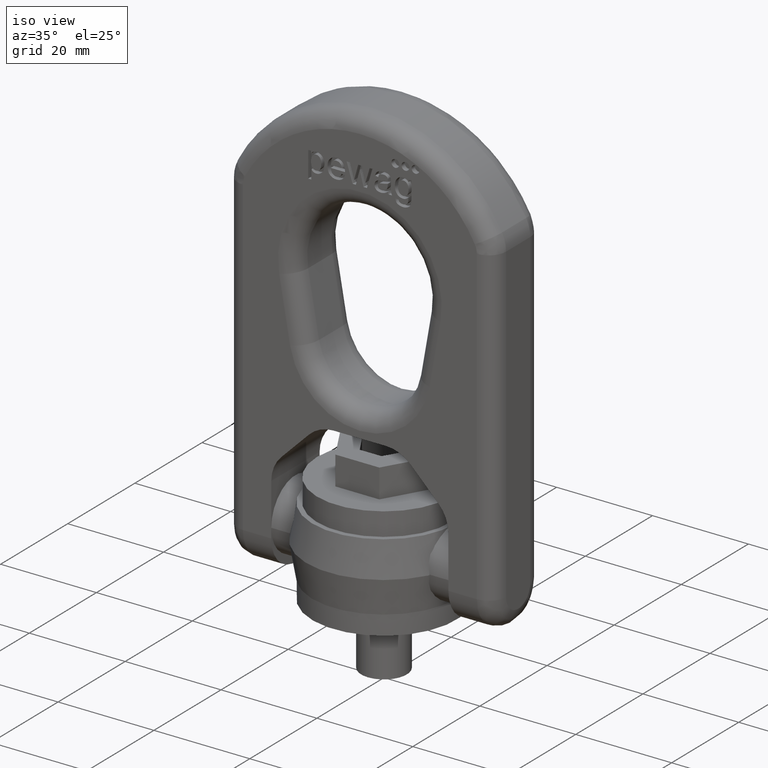
[diagram: clean part render]
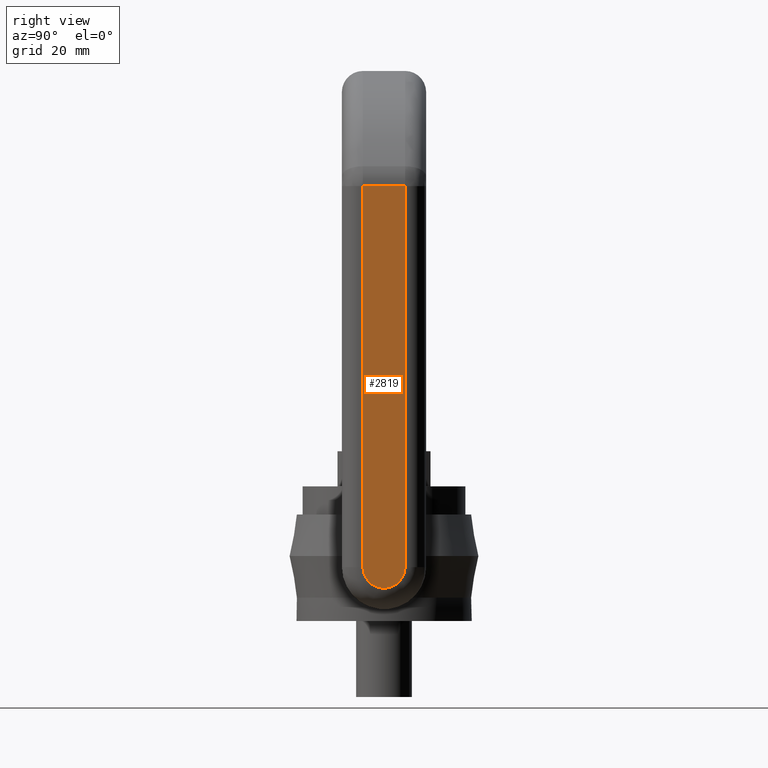
[diagram: tour spotlight — one face highlighted and labeled with its STEP entity id]
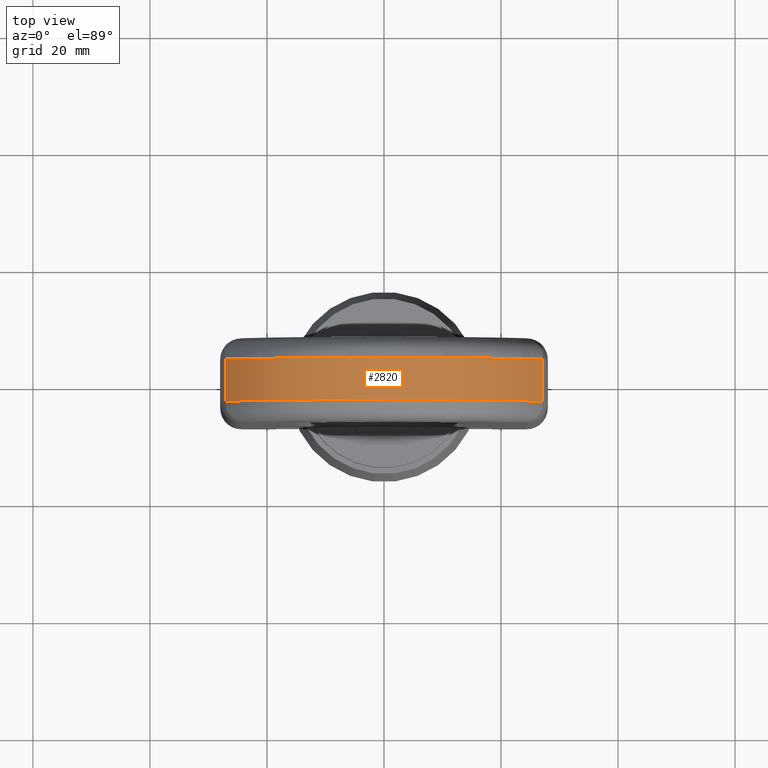
[diagram: tour spotlight — one face highlighted and labeled with its STEP entity id]
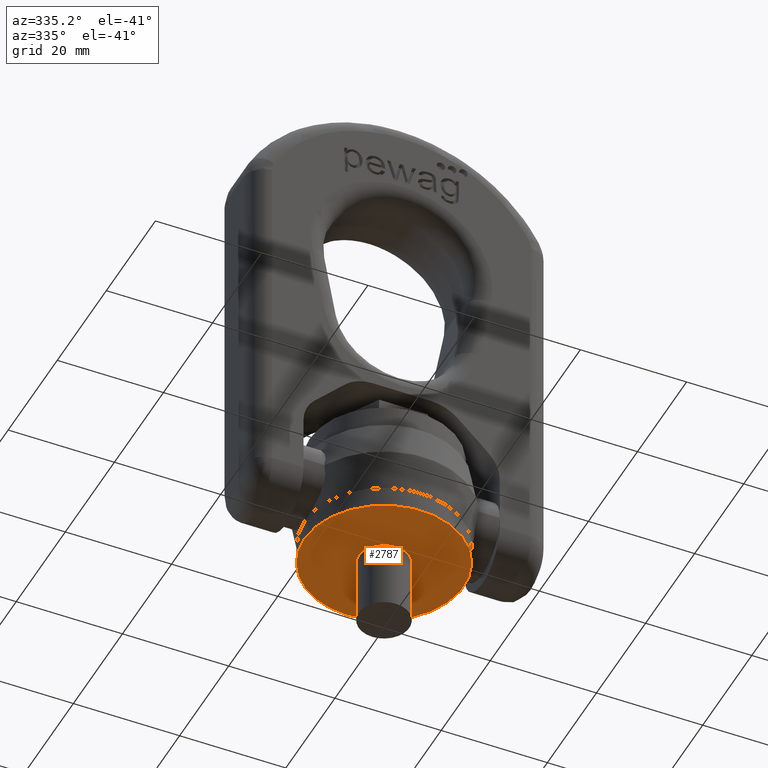
[diagram: tour spotlight — one face highlighted and labeled with its STEP entity id]
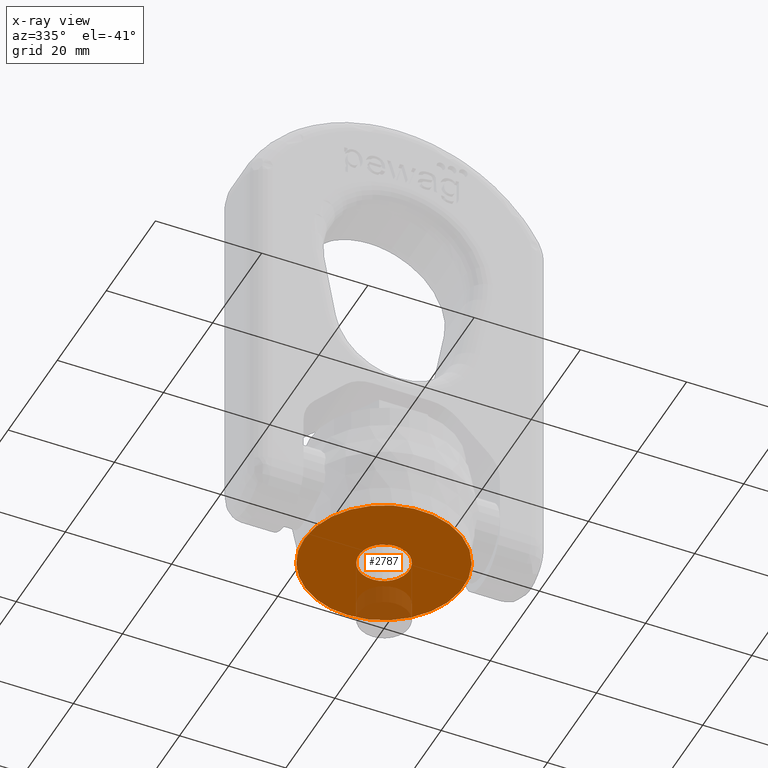
[diagram: x-ray of the same camera — body ghosted, this tour face saturated]
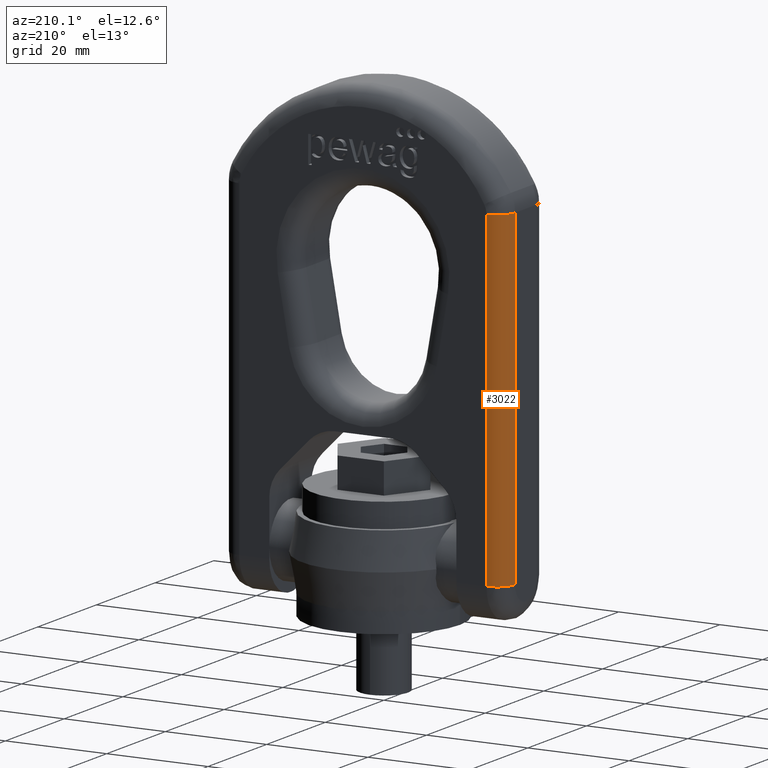
[diagram: tour spotlight — one face highlighted and labeled with its STEP entity id]
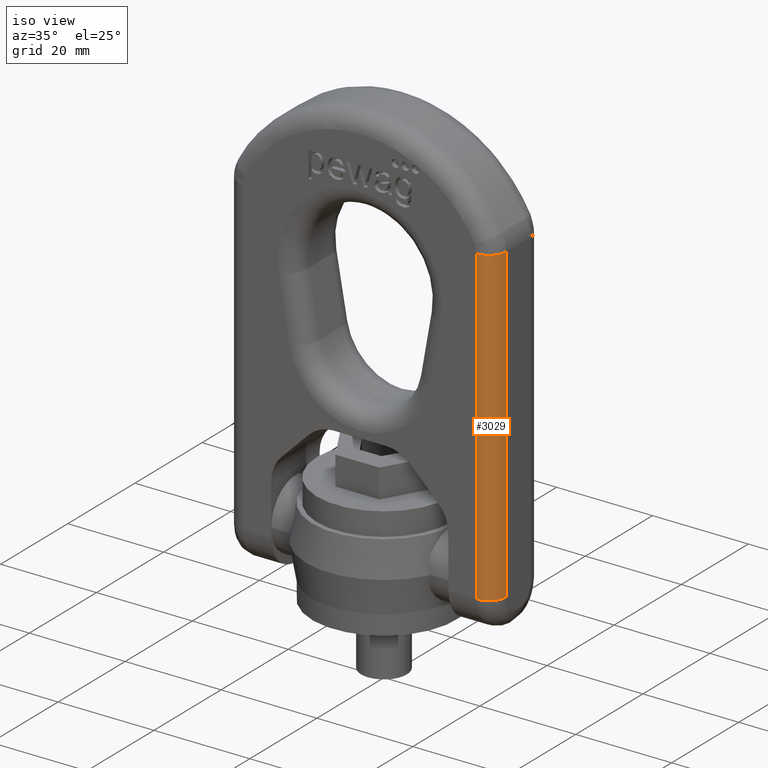
[diagram: tour spotlight — one face highlighted and labeled with its STEP entity id]
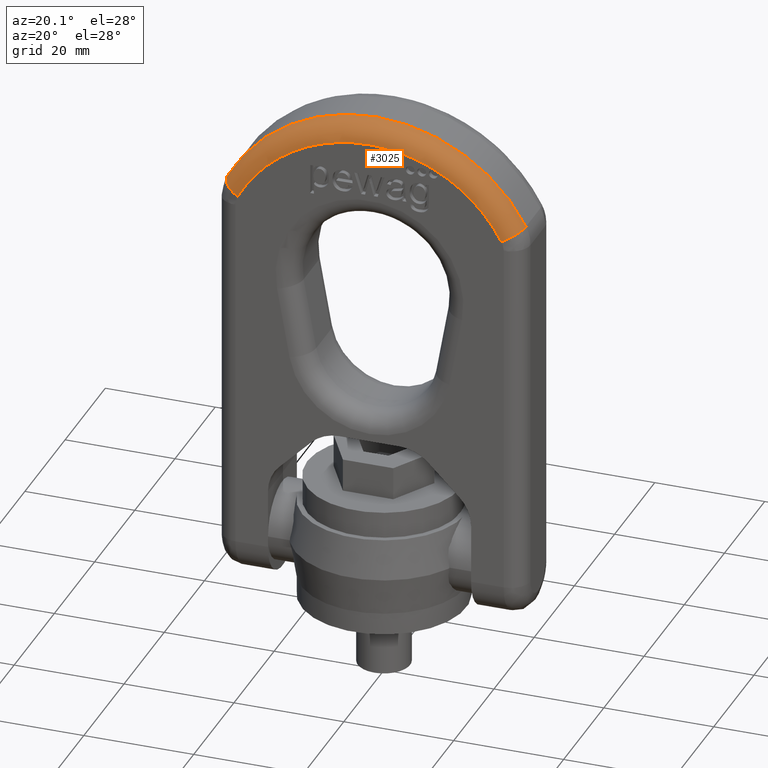
[diagram: tour spotlight — one face highlighted and labeled with its STEP entity id]
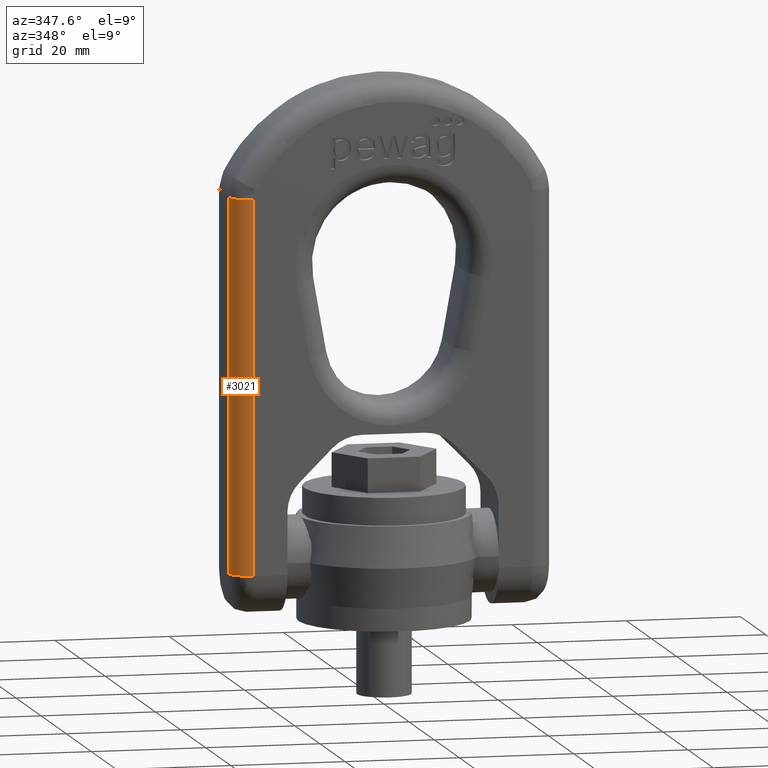
[diagram: tour spotlight — one face highlighted and labeled with its STEP entity id]
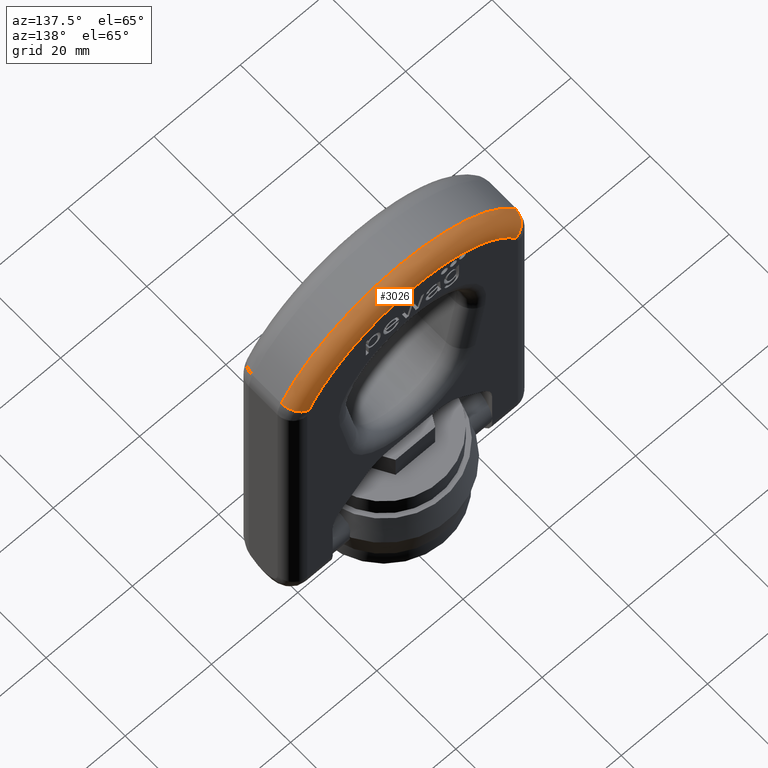
[diagram: tour spotlight — one face highlighted and labeled with its STEP entity id]
A machine part: a face-by-face anatomy tour. The part has 254 B-rep faces; the first image is the clean iso view, then the 8 largest visible faces are spotlighted one at a time (largest first), each with its STEP entity span.

Face 1 — right view, entity #2819. In plain terms, the highlighted planar face has unit normal (-1, 0, -0).
Definition (entity closure, byte-faithful):
#1867=LINE('',#7754,#2175);
#1868=LINE('',#7756,#2176);
#1869=LINE('',#7758,#2177);
#2175=VECTOR('',#6354,1.);
#2176=VECTOR('',#6355,1.);
#2177=VECTOR('',#6356,1.);
#2459=FACE_OUTER_BOUND('',#3197,.T.);
#2690=PLANE('',#5903);
#2819=ADVANCED_FACE('',(#2459),#2690,.F.);
#3197=EDGE_LOOP('',(#3735,#3736,#3737,#3738));
#3735=ORIENTED_EDGE('',*,*,#5364,.T.);
#3736=ORIENTED_EDGE('',*,*,#5365,.T.);
#3737=ORIENTED_EDGE('',*,*,#5366,.T.);
#3738=ORIENTED_EDGE('',*,*,#5367,.T.);
#4923=VERTEX_POINT('',#7752);
#4924=VERTEX_POINT('',#7753);
#4925=VERTEX_POINT('',#7755);
#4926=VERTEX_POINT('',#7757);
#5364=EDGE_CURVE('',#4923,#4924,#5790,.T.);
#5365=EDGE_CURVE('',#4924,#4925,#1867,.T.);
#5366=EDGE_CURVE('',#4925,#4926,#1868,.T.);
#5367=EDGE_CURVE('',#4926,#4923,#1869,.T.);
#5790=CIRCLE('',#5902,3.59999999999997);
#5902=AXIS2_PLACEMENT_3D('',#7751,#6352,#6353);
#5903=AXIS2_PLACEMENT_3D('',#7759,#6357,#6358);
#6352=DIRECTION('',(1.,0.,1.4065325480893E-16));
#6353=DIRECTION('',(0.,0.,1.));
#6354=DIRECTION('',(-1.4065325480893E-16,3.29538019783828E-31,1.));
#6355=DIRECTION('',(0.,-1.,0.));
#6356=DIRECTION('',(1.4065325480893E-16,0.,-1.));
#6357=DIRECTION('',(-1.,0.,-1.4065325480893E-16));
#6358=DIRECTION('',(-1.42247325030098E-16,0.,1.));
#7751=CARTESIAN_POINT('',(28.,-2.87220644093874E-14,9.19999999999997));
#7752=CARTESIAN_POINT('',(28.,-3.6,9.19999999999997));
#7753=CARTESIAN_POINT('',(28.,3.59999999999994,9.19999999999997));
#7754=CARTESIAN_POINT('',(28.,3.59999999999994,74.324996872654));
#7755=CARTESIAN_POINT('',(28.,3.59999999999994,74.324996872654));
#7756=CARTESIAN_POINT('',(28.,-7.2,74.324996872654));
#7757=CARTESIAN_POINT('',(28.,-3.6,74.324996872654));
#7758=CARTESIAN_POINT('',(28.,-3.6,9.19999999999997));
#7759=CARTESIAN_POINT('',(28.,-7.2,2.));

Face 2 — top view, entity #2820. In plain terms, the highlighted cylindrical surface (partial cylindrical patch) has radius 30.7778 mm, axis along (0, 1, 0).
Definition (entity closure, byte-faithful):
#1870=LINE('',#7760,#2178);
#1871=LINE('',#7765,#2179);
#2178=VECTOR('',#6359,1.);
#2179=VECTOR('',#6362,1.);
#2460=FACE_OUTER_BOUND('',#3198,.T.);
#2820=ADVANCED_FACE('',(#2460),#3046,.T.);
#3046=CYLINDRICAL_SURFACE('',#5906,30.7777777777778);
#3198=EDGE_LOOP('',(#3739,#3740,#3741,#3742));
#3739=ORIENTED_EDGE('',*,*,#5368,.T.);
#3740=ORIENTED_EDGE('',*,*,#5369,.T.);
#3741=ORIENTED_EDGE('',*,*,#5370,.T.);
#3742=ORIENTED_EDGE('',*,*,#5371,.T.);
#4927=VERTEX_POINT('',#7761);
#4928=VERTEX_POINT('',#7762);
#4929=VERTEX_POINT('',#7764);
#4930=VERTEX_POINT('',#7766);
#5368=EDGE_CURVE('',#4927,#4928,#1870,.T.);
#5369=EDGE_CURVE('',#4928,#4929,#5791,.T.);
#5370=EDGE_CURVE('',#4929,#4930,#1871,.T.);
#5371=EDGE_CURVE('',#4930,#4927,#5792,.T.);
#5791=CIRCLE('',#5904,30.7777777777778);
#5792=CIRCLE('',#5905,30.7777777777778);
#5904=AXIS2_PLACEMENT_3D('',#7763,#6360,#6361);
#5905=AXIS2_PLACEMENT_3D('',#7767,#6363,#6364);
#5906=AXIS2_PLACEMENT_3D('',#7768,#6365,#6366);
#6359=DIRECTION('',(0.,1.,0.));
#6360=DIRECTION('',(-2.34291072916505E-15,-1.,0.));
#6361=DIRECTION('',(-1.,2.33905854973768E-15,0.));
#6362=DIRECTION('',(0.,-1.,0.));
#6363=DIRECTION('',(0.,1.,0.));
#6364=DIRECTION('',(0.,0.,-1.));
#6365=DIRECTION('',(0.,1.,0.));
#6366=DIRECTION('',(0.,0.,1.));
#7760=CARTESIAN_POINT('',(27.1517436380773,-7.2,77.7154765962543));
#7761=CARTESIAN_POINT('',(27.1517436380773,-3.6,77.7154765962543));
#7762=CARTESIAN_POINT('',(27.1517436380773,3.59999999999993,77.7154765962543));
#7763=CARTESIAN_POINT('',(0.,3.59999999999999,63.2222222222222));
#7764=CARTESIAN_POINT('',(-27.1517436380773,3.60000000000006,77.7154765962543));
#7765=CARTESIAN_POINT('',(-27.1517436380773,-7.2,77.7154765962543));
#7766=CARTESIAN_POINT('',(-27.1517436380773,-3.6,77.7154765962543));
#7767=CARTESIAN_POINT('',(0.,-3.6,63.2222222222222));
#7768=CARTESIAN_POINT('',(0.,-7.2,63.2222222222222));

Face 3 — auxiliary view, entity #2787. An x-ray twin of the same camera follows (body ghosted, this face saturated) — the face is partly hidden behind the body. In plain terms, the highlighted planar face has unit normal (0, 0, -1).
Definition (entity closure, byte-faithful):
#2665=PLANE('',#5832);
#2787=ADVANCED_FACE('',(#3071,#3072),#2665,.T.);
#3071=FACE_BOUND('',#3139,.T.);
#3072=FACE_BOUND('',#3140,.T.);
#3139=EDGE_LOOP('',(#3435));
#3140=EDGE_LOOP('',(#3436));
#3435=ORIENTED_EDGE('',*,*,#5119,.F.);
#3436=ORIENTED_EDGE('',*,*,#5118,.T.);
#4698=VERTEX_POINT('',#6940);
#4699=VERTEX_POINT('',#6943);
#5118=EDGE_CURVE('',#4698,#4698,#5750,.T.);
#5119=EDGE_CURVE('',#4699,#4699,#5751,.T.);
#5750=CIRCLE('',#5829,15.);
#5751=CIRCLE('',#5831,4.765);
#5829=AXIS2_PLACEMENT_3D('',#6939,#6068,#6069);
#5831=AXIS2_PLACEMENT_3D('',#6942,#6072,#6073);
#5832=AXIS2_PLACEMENT_3D('',#6944,#6074,#6075);
#6068=DIRECTION('',(0.,0.,-1.));
#6069=DIRECTION('',(-6.12323399573677E-17,1.,0.));
#6072=DIRECTION('',(0.,0.,-1.));
#6073=DIRECTION('',(-6.12323399573677E-17,1.,0.));
#6074=DIRECTION('',(0.,0.,-1.));
#6075=DIRECTION('',(-1.,0.,0.));
#6939=CARTESIAN_POINT('',(0.,0.,0.));
#6940=CARTESIAN_POINT('',(-9.18485099360515E-16,15.,0.));
#6942=CARTESIAN_POINT('',(0.,0.,0.));
#6943=CARTESIAN_POINT('',(-2.91772099896857E-16,4.765,0.));
#6944=CARTESIAN_POINT('',(0.,0.,0.));

Face 4 — auxiliary view, entity #3022. In plain terms, the highlighted cylindrical surface (edge-blend (fillet) strip) has radius 3.6 mm, axis along (-0, 0, -1).
Definition (entity closure, byte-faithful):
#1823=LINE('',#7423,#2131);
#1865=LINE('',#7745,#2173);
#2131=VECTOR('',#6282,1.);
#2173=VECTOR('',#6346,1.);
#2647=FACE_OUTER_BOUND('',#3415,.T.);
#3022=ADVANCED_FACE('',(#2647),#3062,.T.);
#3062=CYLINDRICAL_SURFACE('',#6035,3.6);
#3415=EDGE_LOOP('',(#4625,#4626,#4627,#4628));
#4625=ORIENTED_EDGE('',*,*,#5729,.T.);
#4626=ORIENTED_EDGE('',*,*,#5361,.F.);
#4627=ORIENTED_EDGE('',*,*,#5732,.F.);
#4628=ORIENTED_EDGE('',*,*,#5278,.F.);
#4739=VERTEX_POINT('',#7058);
#4840=VERTEX_POINT('',#7424);
#4920=VERTEX_POINT('',#7744);
#4921=VERTEX_POINT('',#7746);
#5278=EDGE_CURVE('',#4739,#4840,#1823,.T.);
#5361=EDGE_CURVE('',#4920,#4921,#1865,.T.);
#5729=EDGE_CURVE('',#4739,#4921,#5807,.T.);
#5732=EDGE_CURVE('',#4840,#4920,#5810,.T.);
#5807=CIRCLE('',#6030,3.6);
#5810=CIRCLE('',#6034,3.6);
#6030=AXIS2_PLACEMENT_3D('',#9715,#6868,#6869);
#6034=AXIS2_PLACEMENT_3D('',#9735,#6876,#6877);
#6035=AXIS2_PLACEMENT_3D('',#9736,#6878,#6879);
#6282=DIRECTION('',(1.4065325480893E-16,-3.29538019783828E-31,1.));
#6346=DIRECTION('',(-1.4065325480893E-16,3.29538019783828E-31,-1.));
#6868=DIRECTION('',(0.,0.,1.));
#6869=DIRECTION('',(1.,0.,0.));
#6876=DIRECTION('',(0.,0.,1.));
#6877=DIRECTION('',(1.,0.,0.));
#6878=DIRECTION('',(-1.4065325480893E-16,3.29538019783828E-31,-1.));
#6879=DIRECTION('',(-1.,0.,0.));
#7058=CARTESIAN_POINT('',(-24.4,7.20000000000006,9.20000000000003));
#7423=CARTESIAN_POINT('',(-24.4,7.20000000000006,74.324996872654));
#7424=CARTESIAN_POINT('',(-24.4,7.20000000000006,74.324996872654));
#7744=CARTESIAN_POINT('',(-28.,3.60000000000006,74.324996872654));
#7745=CARTESIAN_POINT('',(-28.,3.60000000000006,9.20000000000003));
#7746=CARTESIAN_POINT('',(-28.,3.6,9.20000000000003));
#9715=CARTESIAN_POINT('',(-24.4,3.6,9.20000000000003));
#9735=CARTESIAN_POINT('',(-24.4,3.60000000000006,74.324996872654));
#9736=CARTESIAN_POINT('',(-24.4,3.60000000000006,63.2222222222222));

Face 5 — iso view, entity #3029. In plain terms, the highlighted cylindrical surface (edge-blend (fillet) strip) has radius 3.6 mm, axis along (0, 0, -1).
Definition (entity closure, byte-faithful):
#1776=LINE('',#7077,#2084);
#1869=LINE('',#7758,#2177);
#2084=VECTOR('',#6199,1.);
#2177=VECTOR('',#6356,1.);
#2654=FACE_OUTER_BOUND('',#3422,.T.);
#3029=ADVANCED_FACE('',(#2654),#3063,.T.);
#3063=CYLINDRICAL_SURFACE('',#6045,3.6);
#3422=EDGE_LOOP('',(#4653,#4654,#4655,#4656));
#4653=ORIENTED_EDGE('',*,*,#5737,.F.);
#4654=ORIENTED_EDGE('',*,*,#5180,.F.);
#4655=ORIENTED_EDGE('',*,*,#5739,.F.);
#4656=ORIENTED_EDGE('',*,*,#5367,.F.);
#4742=VERTEX_POINT('',#7066);
#4747=VERTEX_POINT('',#7078);
#4923=VERTEX_POINT('',#7752);
#4926=VERTEX_POINT('',#7757);
#5180=EDGE_CURVE('',#4742,#4747,#1776,.T.);
#5367=EDGE_CURVE('',#4926,#4923,#1869,.T.);
#5737=EDGE_CURVE('',#4747,#4926,#5815,.T.);
#5739=EDGE_CURVE('',#4923,#4742,#5817,.T.);
#5815=CIRCLE('',#6042,3.6);
#5817=CIRCLE('',#6044,3.6);
#6042=AXIS2_PLACEMENT_3D('',#9775,#6892,#6893);
#6044=AXIS2_PLACEMENT_3D('',#9809,#6896,#6897);
#6045=AXIS2_PLACEMENT_3D('',#9810,#6898,#6899);
#6199=DIRECTION('',(-1.4065325480893E-16,0.,1.));
#6356=DIRECTION('',(1.4065325480893E-16,0.,-1.));
#6892=DIRECTION('',(0.,0.,1.));
#6893=DIRECTION('',(-1.,0.,0.));
#6896=DIRECTION('',(0.,0.,-1.));
#6897=DIRECTION('',(-1.,0.,0.));
#6898=DIRECTION('',(1.4065325480893E-16,0.,-1.));
#6899=DIRECTION('',(-1.,0.,0.));
#7066=CARTESIAN_POINT('',(24.4,-7.2,9.19999999999997));
#7077=CARTESIAN_POINT('',(24.4,-7.2,74.324996872654));
#7078=CARTESIAN_POINT('',(24.4,-7.2,74.324996872654));
#7752=CARTESIAN_POINT('',(28.,-3.6,9.19999999999997));
#7757=CARTESIAN_POINT('',(28.,-3.6,74.324996872654));
#7758=CARTESIAN_POINT('',(28.,-3.6,9.19999999999997));
#9775=CARTESIAN_POINT('',(24.4,-3.6,74.324996872654));
#9809=CARTESIAN_POINT('',(24.4,-3.6,9.19999999999997));
#9810=CARTESIAN_POINT('',(24.4,-3.6,63.2222222222222));

Face 6 — auxiliary view, entity #3025. In plain terms, the highlighted toroidal blend (fillet) surface has major radius 27.1778 mm and minor (blend) radius 3.6 mm.
Definition (entity closure, byte-faithful):
#201=TOROIDAL_SURFACE('',#6039,27.1777777777778,3.6);
#2650=FACE_OUTER_BOUND('',#3418,.T.);
#3025=ADVANCED_FACE('',(#2650),#201,.T.);
#3418=EDGE_LOOP('',(#4637,#4638,#4639,#4640));
#4637=ORIENTED_EDGE('',*,*,#5733,.F.);
#4638=ORIENTED_EDGE('',*,*,#5182,.F.);
#4639=ORIENTED_EDGE('',*,*,#5735,.T.);
#4640=ORIENTED_EDGE('',*,*,#5371,.F.);
#4748=VERTEX_POINT('',#7080);
#4749=VERTEX_POINT('',#7082);
#4927=VERTEX_POINT('',#7761);
#4930=VERTEX_POINT('',#7766);
#5182=EDGE_CURVE('',#4748,#4749,#5766,.T.);
#5371=EDGE_CURVE('',#4930,#4927,#5792,.T.);
#5733=EDGE_CURVE('',#4749,#4930,#5811,.T.);
#5735=EDGE_CURVE('',#4748,#4927,#5813,.T.);
#5766=CIRCLE('',#5872,27.1777777777778);
#5792=CIRCLE('',#5905,30.7777777777778);
#5811=CIRCLE('',#6036,3.6);
#5813=CIRCLE('',#6038,3.6);
#5872=AXIS2_PLACEMENT_3D('',#7081,#6202,#6203);
#5905=AXIS2_PLACEMENT_3D('',#7767,#6363,#6364);
#6036=AXIS2_PLACEMENT_3D('',#9737,#6880,#6881);
#6038=AXIS2_PLACEMENT_3D('',#9771,#6884,#6885);
#6039=AXIS2_PLACEMENT_3D('',#9772,#6886,#6887);
#6202=DIRECTION('',(0.,-1.,0.));
#6203=DIRECTION('',(0.,0.,-1.));
#6363=DIRECTION('',(0.,1.,0.));
#6364=DIRECTION('',(0.,0.,-1.));
#6880=DIRECTION('',(-0.470899961611152,0.,-0.882186616399623));
#6881=DIRECTION('',(0.882186616399623,0.,-0.470899961611152));
#6884=DIRECTION('',(-0.470899961611152,0.,0.882186616399623));
#6885=DIRECTION('',(-0.882186616399623,0.,-0.470899961611152));
#6886=DIRECTION('',(0.,-1.,0.));
#6887=DIRECTION('',(0.,0.,-1.));
#7080=CARTESIAN_POINT('',(23.9758718190387,-7.2,76.0202367344542));
#7081=CARTESIAN_POINT('',(0.,-7.2,63.2222222222222));
#7082=CARTESIAN_POINT('',(-23.9758718190386,-7.2,76.0202367344542));
#7761=CARTESIAN_POINT('',(27.1517436380773,-3.6,77.7154765962543));
#7766=CARTESIAN_POINT('',(-27.1517436380773,-3.6,77.7154765962543));
#7767=CARTESIAN_POINT('',(0.,-3.6,63.2222222222222));
#9737=CARTESIAN_POINT('',(-23.9758718190386,-3.6,76.0202367344542));
#9771=CARTESIAN_POINT('',(23.9758718190387,-3.6,76.0202367344542));
#9772=CARTESIAN_POINT('',(0.,-3.6,63.2222222222222));

Face 7 — auxiliary view, entity #3021. In plain terms, the highlighted cylindrical surface (edge-blend (fillet) strip) has radius 3.6 mm, axis along (0, 0, 1).
Definition (entity closure, byte-faithful):
#1777=LINE('',#7085,#2085);
#1866=LINE('',#7749,#2174);
#2085=VECTOR('',#6206,1.);
#2174=VECTOR('',#6349,1.);
#2646=FACE_OUTER_BOUND('',#3414,.T.);
#3021=ADVANCED_FACE('',(#2646),#3061,.T.);
#3061=CYLINDRICAL_SURFACE('',#6033,3.6);
#3414=EDGE_LOOP('',(#4621,#4622,#4623,#4624));
#4621=ORIENTED_EDGE('',*,*,#5730,.T.);
#4622=ORIENTED_EDGE('',*,*,#5184,.F.);
#4623=ORIENTED_EDGE('',*,*,#5731,.F.);
#4624=ORIENTED_EDGE('',*,*,#5363,.F.);
#4737=VERTEX_POINT('',#7055);
#4750=VERTEX_POINT('',#7084);
#4919=VERTEX_POINT('',#7743);
#4922=VERTEX_POINT('',#7748);
#5184=EDGE_CURVE('',#4750,#4737,#1777,.T.);
#5363=EDGE_CURVE('',#4922,#4919,#1866,.T.);
#5730=EDGE_CURVE('',#4922,#4737,#5808,.T.);
#5731=EDGE_CURVE('',#4919,#4750,#5809,.T.);
#5808=CIRCLE('',#6031,3.6);
#5809=CIRCLE('',#6032,3.6);
#6031=AXIS2_PLACEMENT_3D('',#9716,#6870,#6871);
#6032=AXIS2_PLACEMENT_3D('',#9733,#6872,#6873);
#6033=AXIS2_PLACEMENT_3D('',#9734,#6874,#6875);
#6206=DIRECTION('',(-1.4065325480893E-16,0.,-1.));
#6349=DIRECTION('',(1.4065325480893E-16,0.,1.));
#6870=DIRECTION('',(0.,0.,1.));
#6871=DIRECTION('',(1.,0.,0.));
#6872=DIRECTION('',(0.,0.,1.));
#6873=DIRECTION('',(1.,0.,0.));
#6874=DIRECTION('',(1.4065325480893E-16,0.,1.));
#6875=DIRECTION('',(1.,0.,0.));
#7055=CARTESIAN_POINT('',(-24.4,-7.2,9.20000000000003));
#7084=CARTESIAN_POINT('',(-24.4,-7.2,74.324996872654));
#7085=CARTESIAN_POINT('',(-24.4,-7.2,9.20000000000004));
#7743=CARTESIAN_POINT('',(-28.,-3.6,74.324996872654));
#7748=CARTESIAN_POINT('',(-28.,-3.6,9.20000000000003));
#7749=CARTESIAN_POINT('',(-28.,-3.6,74.324996872654));
#9716=CARTESIAN_POINT('',(-24.4,-3.59999999999994,9.20000000000003));
#9733=CARTESIAN_POINT('',(-24.4,-3.6,74.324996872654));
#9734=CARTESIAN_POINT('',(-24.4,-3.6,63.2222222222222));

Face 8 — auxiliary view, entity #3026. In plain terms, the highlighted toroidal blend (fillet) surface has major radius 27.1778 mm and minor (blend) radius 3.6 mm.
Definition (entity closure, byte-faithful):
#202=TOROIDAL_SURFACE('',#6041,27.1777777777778,3.6);
#2651=FACE_OUTER_BOUND('',#3419,.T.);
#3026=ADVANCED_FACE('',(#2651),#202,.T.);
#3419=EDGE_LOOP('',(#4641,#4642,#4643,#4644));
#4641=ORIENTED_EDGE('',*,*,#5734,.T.);
#4642=ORIENTED_EDGE('',*,*,#5369,.F.);
#4643=ORIENTED_EDGE('',*,*,#5736,.F.);
#4644=ORIENTED_EDGE('',*,*,#5280,.F.);
#4831=VERTEX_POINT('',#7404);
#4841=VERTEX_POINT('',#7426);
#4928=VERTEX_POINT('',#7762);
#4929=VERTEX_POINT('',#7764);
#5280=EDGE_CURVE('',#4841,#4831,#5783,.T.);
#5369=EDGE_CURVE('',#4928,#4929,#5791,.T.);
#5734=EDGE_CURVE('',#4841,#4929,#5812,.T.);
#5736=EDGE_CURVE('',#4831,#4928,#5814,.T.);
#5783=CIRCLE('',#5890,27.1777777777778);
#5791=CIRCLE('',#5904,30.7777777777778);
#5812=CIRCLE('',#6037,3.6);
#5814=CIRCLE('',#6040,3.6);
#5890=AXIS2_PLACEMENT_3D('',#7427,#6285,#6286);
#5904=AXIS2_PLACEMENT_3D('',#7763,#6360,#6361);
#6037=AXIS2_PLACEMENT_3D('',#9754,#6882,#6883);
#6040=AXIS2_PLACEMENT_3D('',#9773,#6888,#6889);
#6041=AXIS2_PLACEMENT_3D('',#9774,#6890,#6891);
#6285=DIRECTION('',(2.34291072916505E-15,1.,0.));
#6286=DIRECTION('',(-1.,2.32974923081922E-15,0.));
#6360=DIRECTION('',(-2.34291072916505E-15,-1.,0.));
#6361=DIRECTION('',(-1.,2.33905854973768E-15,0.));
#6882=DIRECTION('',(0.470899961611151,-9.07645798048268E-16,0.882186616399623));
#6883=DIRECTION('',(0.882186616399624,0.,-0.470899961611152));
#6888=DIRECTION('',(0.470899961611152,-9.07645798048269E-16,-0.882186616399623));
#6889=DIRECTION('',(-0.882186616399623,0.,-0.470899961611152));
#6890=DIRECTION('',(2.34291072916505E-15,1.,0.));
#6891=DIRECTION('',(-1.,2.33905854973768E-15,0.));
#7404=CARTESIAN_POINT('',(23.9758718190387,7.19999999999994,76.0202367344542));
#7426=CARTESIAN_POINT('',(-23.9758718190386,7.20000000000006,76.0202367344542));
#7427=CARTESIAN_POINT('',(8.43447862499418E-15,7.2,63.2222222222222));
#7762=CARTESIAN_POINT('',(27.1517436380773,3.59999999999993,77.7154765962543));
#7763=CARTESIAN_POINT('',(0.,3.59999999999999,63.2222222222222));
#7764=CARTESIAN_POINT('',(-27.1517436380773,3.60000000000006,77.7154765962543));
#9754=CARTESIAN_POINT('',(-23.9758718190386,3.60000000000006,76.0202367344542));
#9773=CARTESIAN_POINT('',(23.9758718190387,3.59999999999994,76.0202367344542));
#9774=CARTESIAN_POINT('',(0.,3.6,63.2222222222222));